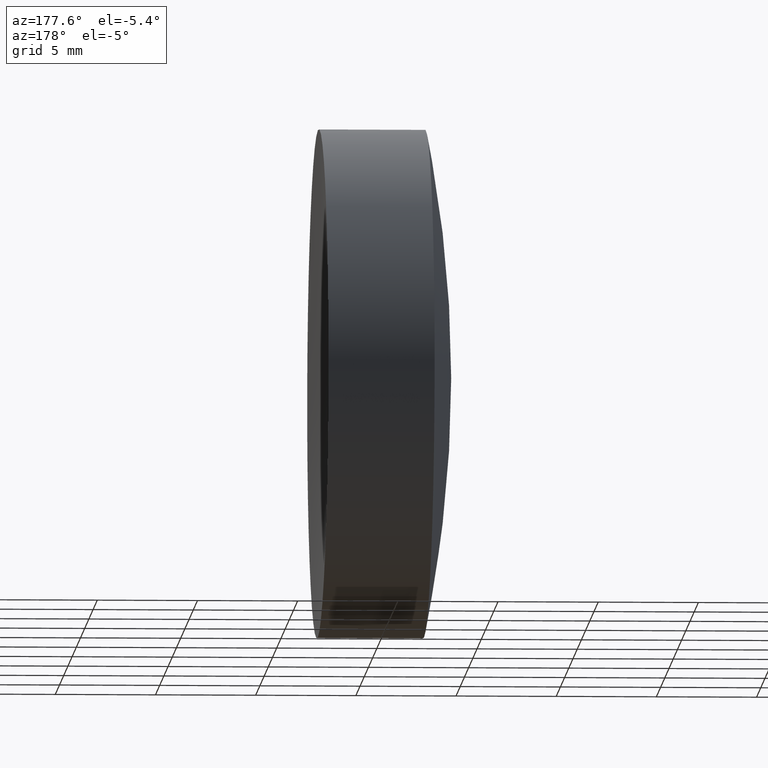
[diagram: clean part render]
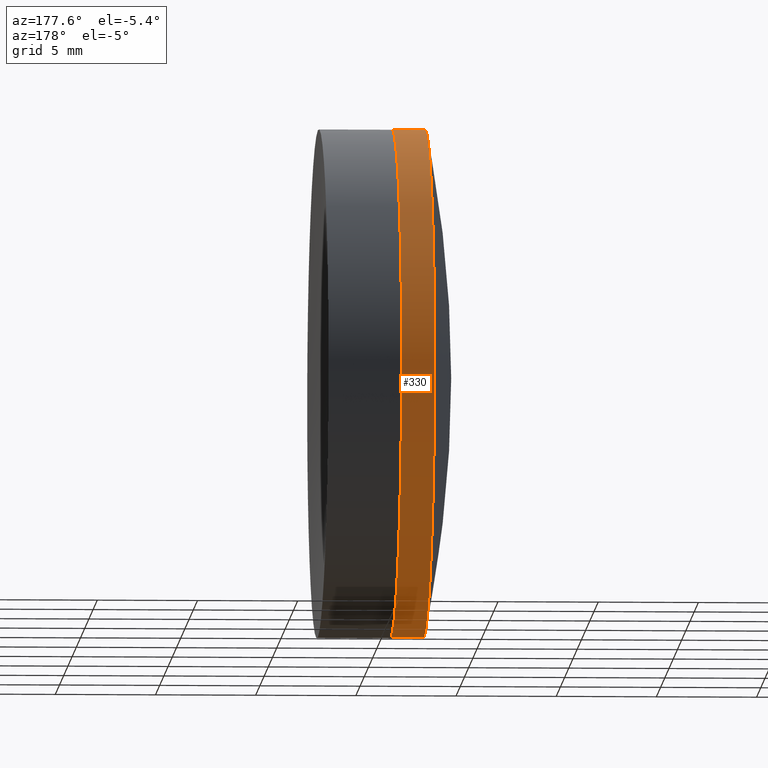
[diagram: same view with one face highlighted and labeled with its STEP entity id]
A machine part, auxiliary view. The second image highlights one B-rep face of the part: STEP entity #330.
In plain terms, the highlighted cylindrical surface (partial cylindrical patch) has radius 12.7 mm, axis along (-1, -0, -0).
Its self-contained STEP definition (entity closure, byte-faithful):
#10 = EDGE_CURVE ( 'NONE', #198, #57, #268, .T. ) ;
#13 = VERTEX_POINT ( 'NONE', #270 ) ;
#17 = DIRECTION ( 'NONE',  ( -1.000000000000000000, -0.0000000000000000000, -0.0000000000000000000 ) ) ;
#57 = VERTEX_POINT ( 'NONE', #202 ) ;
#63 = DIRECTION ( 'NONE',  ( -1.000000000000000000, -0.0000000000000000000, -0.0000000000000000000 ) ) ;
#89 = ORIENTED_EDGE ( 'NONE', *, *, #346, .F. ) ;
#113 = AXIS2_PLACEMENT_3D ( 'NONE', #247, #17, #274 ) ;
#114 = VECTOR ( 'NONE', #140, 1000.000000000000000 ) ;
#126 = FACE_OUTER_BOUND ( 'NONE', #208, .T. ) ;
#130 = LINE ( 'NONE', #290, #114 ) ;
#137 = EDGE_CURVE ( 'NONE', #57, #271, #216, .T. ) ;
#140 = DIRECTION ( 'NONE',  ( -1.000000000000000000, -0.0000000000000000000, -0.0000000000000000000 ) ) ;
#147 = DIRECTION ( 'NONE',  ( -1.000000000000000000, -0.0000000000000000000, -0.0000000000000000000 ) ) ;
#151 = DIRECTION ( 'NONE',  ( 0.0000000000000000000, 0.0000000000000000000, 1.000000000000000000 ) ) ;
#157 = CARTESIAN_POINT ( 'NONE',  ( 124.5233095260452400, 0.0000000000000000000, 0.0000000000000000000 ) ) ;
#168 = CYLINDRICAL_SURFACE ( 'NONE', #218, 12.69999999999988600 ) ;
#198 = VERTEX_POINT ( 'NONE', #347 ) ;
#202 = CARTESIAN_POINT ( 'NONE',  ( 339.2914657323959800, 1.555301434917124800E-015, -12.69999999999988900 ) ) ;
#208 = EDGE_LOOP ( 'NONE', ( #235, #304, #89, #257 ) ) ;
#216 = LINE ( 'NONE', #234, #308 ) ;
#218 = AXIS2_PLACEMENT_3D ( 'NONE', #157, #147, #242 ) ;
#223 = CIRCLE ( 'NONE', #113, 12.69999999999988200 ) ;
#234 = CARTESIAN_POINT ( 'NONE',  ( 124.5233095260452400, 1.555301434917124400E-015, -12.69999999999988600 ) ) ;
#235 = ORIENTED_EDGE ( 'NONE', *, *, #10, .T. ) ;
#242 = DIRECTION ( 'NONE',  ( 0.0000000000000000000, 0.0000000000000000000, 1.000000000000000000 ) ) ;
#247 = CARTESIAN_POINT ( 'NONE',  ( 337.6465557388061100, 0.0000000000000000000, 0.0000000000000000000 ) ) ;
#257 = ORIENTED_EDGE ( 'NONE', *, *, #337, .F. ) ;
#260 = CARTESIAN_POINT ( 'NONE',  ( 339.2914657323959800, 0.0000000000000000000, 0.0000000000000000000 ) ) ;
#267 = AXIS2_PLACEMENT_3D ( 'NONE', #260, #282, #151 ) ;
#268 = CIRCLE ( 'NONE', #267, 12.69999999999988700 ) ;
#270 = CARTESIAN_POINT ( 'NONE',  ( 337.6465557388061100, -1.555301434917122300E-015, 12.69999999999988600 ) ) ;
#271 = VERTEX_POINT ( 'NONE', #289 ) ;
#274 = DIRECTION ( 'NONE',  ( 0.0000000000000000000, 0.0000000000000000000, 1.000000000000000000 ) ) ;
#282 = DIRECTION ( 'NONE',  ( -1.000000000000000000, -0.0000000000000000000, -0.0000000000000000000 ) ) ;
#289 = CARTESIAN_POINT ( 'NONE',  ( 337.6465557388061100, 0.0000000000000000000, -12.69999999999986800 ) ) ;
#290 = CARTESIAN_POINT ( 'NONE',  ( 124.5233095260452400, 0.0000000000000000000, 12.69999999999988600 ) ) ;
#304 = ORIENTED_EDGE ( 'NONE', *, *, #137, .T. ) ;
#308 = VECTOR ( 'NONE', #63, 1000.000000000000000 ) ;
#330 = ADVANCED_FACE ( 'NONE', ( #126 ), #168, .T. ) ;
#337 = EDGE_CURVE ( 'NONE', #198, #13, #130, .T. ) ;
#346 = EDGE_CURVE ( 'NONE', #13, #271, #223, .T. ) ;
#347 = CARTESIAN_POINT ( 'NONE',  ( 339.2914657323959800, 0.0000000000000000000, 12.69999999999988700 ) ) ;